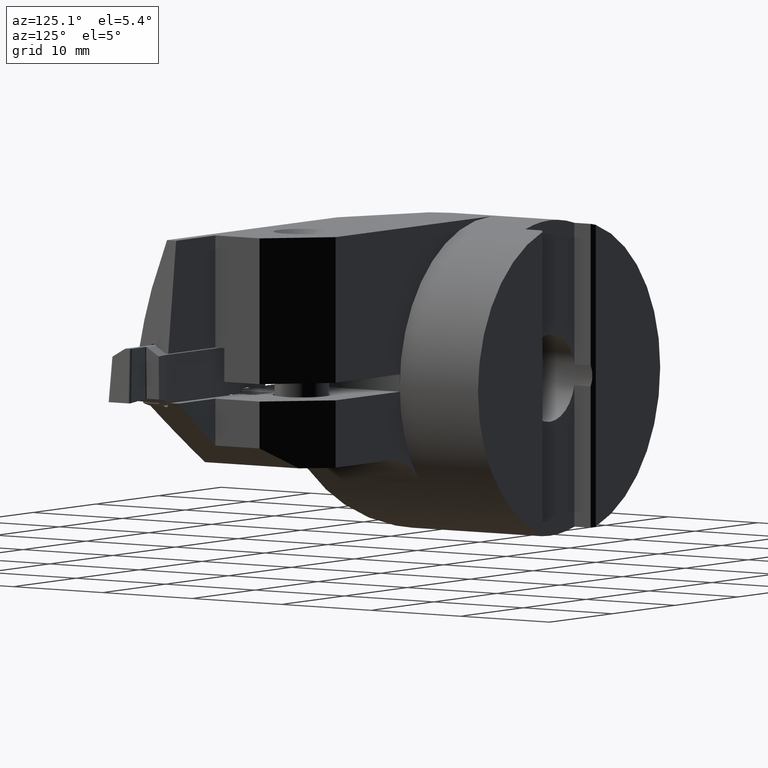
[diagram: clean part render]
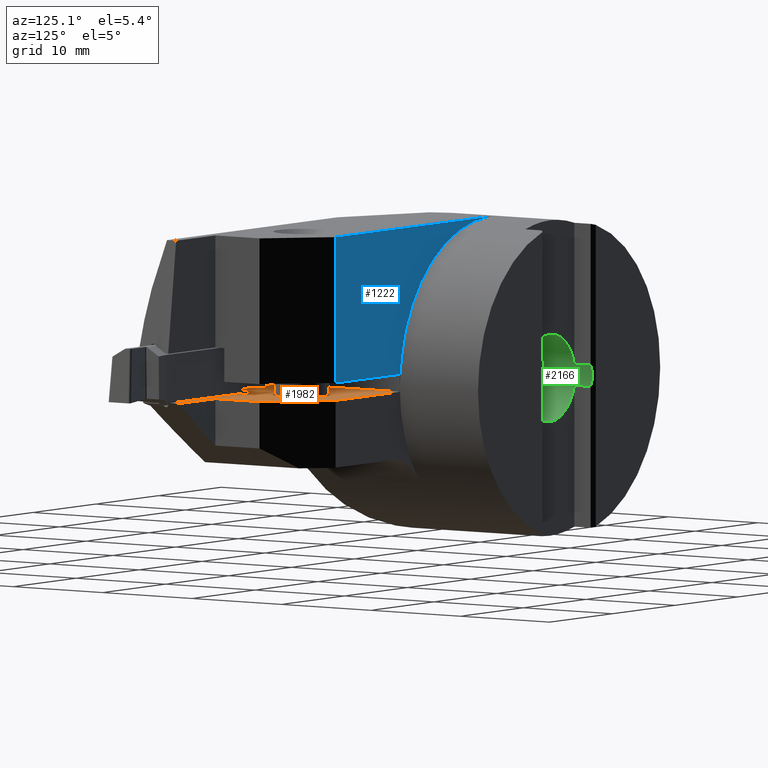
[diagram: same view with three faces highlighted in distinct colors, each labeled with its STEP entity id]
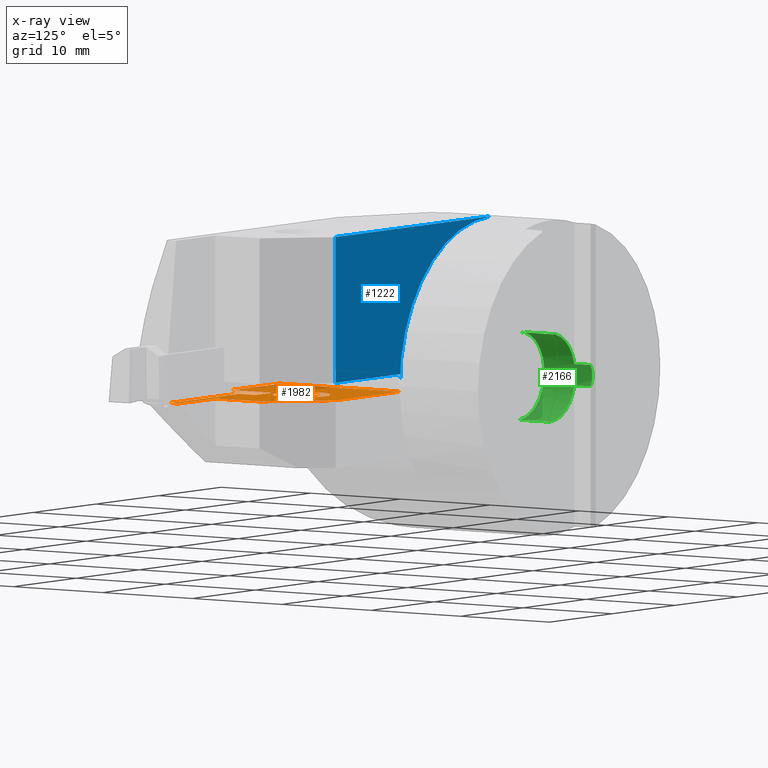
[diagram: x-ray of the same camera — body ghosted, the three highlighted faces saturated]
A machine part, auxiliary view with three faces highlighted in distinct colors.
The next image is the same camera in x-ray (body ghosted, the three faces saturated) — at least one of them is partly hidden behind the body in this view.
Their STEP definitions:

[orange] entity #1982 — the highlighted planar face has unit normal (0, -0, 1).
#878=VERTEX_POINT('NONE',#2361);
#888=VERTEX_POINT('NONE',#2372);
#918=VERTEX_POINT('NONE',#2404);
#958=EDGE_CURVE('Kante116',#1426,#984,#2451,.T.);
#984=VERTEX_POINT('NONE',#2478);
#1034=EDGE_CURVE('Kante59',#1250,#878,#2533,.T.);
#1194=VERTEX_POINT('NONE',#2709);
#1250=VERTEX_POINT('NONE',#2769);
#1254=VERTEX_POINT('NONE',#2774);
#1272=EDGE_CURVE('Kante118',#2096,#2148,#2792,.F.);
#1338=EDGE_CURVE('NONE',#1426,#1448,#2863,.F.);
#1348=EDGE_CURVE('Kante118',#2148,#2096,#2874,.T.);
#1378=EDGE_CURVE('Kante113',#1726,#1254,#2908,.T.);
#1380=EDGE_CURVE('Kante117',#888,#1194,#2910,.T.);
#1426=VERTEX_POINT('NONE',#2960);
#1448=VERTEX_POINT('NONE',#2983);
#1490=EDGE_CURVE('Kante53',#1726,#1194,#3029,.T.);
#1536=EDGE_CURVE('Kante70',#1250,#1254,#3081,.T.);
#1554=VERTEX_POINT('NONE',#3101);
#1564=EDGE_CURVE('Kante37',#878,#918,#3112,.F.);
#1574=EDGE_CURVE('Kante35',#1448,#888,#3123,.T.);
#1668=EDGE_CURVE('Kante61',#984,#1554,#3224,.T.);
#1726=VERTEX_POINT('NONE',#3286);
#1860=EDGE_CURVE('Kante111',#1554,#918,#3436,.F.);
#1982=ADVANCED_FACE('NONE',(#3570,#3571),#3572,.T.);
#2096=VERTEX_POINT('NONE',#3699);
#2148=VERTEX_POINT('NONE',#3756);
#2361=CARTESIAN_POINT('',(14.5,-8.75,-0.5));
#2372=CARTESIAN_POINT('',(24.6779736417661,-19.5903916638199,-0.5));
#2404=CARTESIAN_POINT('',(24.7,-8.75,-0.5));
#2451=LINE('',#4221,#4222);
#2478=CARTESIAN_POINT('',(29.7,-18.6955136271329,-0.5));
#2533=LINE('',#4368,#4369);
#2709=CARTESIAN_POINT('',(24.6779736417661,-17.7,-0.5));
#2769=CARTESIAN_POINT('',(14.5,-22.1971263418631,-0.499999999999999));
#2774=CARTESIAN_POINT('',(21.8747842953657,-22.1971263418631,-0.5));
#2792=CIRCLE('',#4895,2.65);
#2863=LINE('',#4999,#5000);
#2874=CIRCLE('',#5016,2.65);
#2908=LINE('',#5096,#5097);
#2910=LINE('',#5100,#5101);
#2960=CARTESIAN_POINT('',(35.6335679069214,-18.6955136271329,-0.5));
#2983=CARTESIAN_POINT('',(35.6335679069214,-19.5903916638199,-0.5));
#3029=LINE('',#5426,#5427);
#3081=LINE('',#5501,#5502);
#3101=CARTESIAN_POINT('',(29.7,-13.75,-0.5));
#3112=LINE('',#5541,#5542);
#3123=LINE('',#5574,#5575);
#3224=LINE('',#5739,#5740);
#3286=CARTESIAN_POINT('',(21.8747842953657,-17.7,-0.5));
#3436=LINE('',#6090,#6091);
#3570=FACE_OUTER_BOUND('',#6475,.T.);
#3571=FACE_BOUND('',#6476,.T.);
#3572=PLANE('',#6477);
#3699=CARTESIAN_POINT('',(24.65,-14.45,-0.5));
#3756=CARTESIAN_POINT('',(19.35,-14.45,-0.5));
#4221=CARTESIAN_POINT('',(37.2,-18.6955136271329,-0.5));
#4222=VECTOR('',#7194,1.0);
#4368=CARTESIAN_POINT('',(14.5,-22.2,-0.5));
#4369=VECTOR('',#7273,1.0);
#4895=AXIS2_PLACEMENT_3D('',#7537,#7538,#7539);
#4999=CARTESIAN_POINT('',(35.6335679069214,-22.2,-0.5));
#5000=VECTOR('',#7602,1.0);
#5016=AXIS2_PLACEMENT_3D('',#7621,#7622,#7623);
#5096=CARTESIAN_POINT('',(21.8747842953657,-17.7,-0.5));
#5097=VECTOR('',#7656,1.0);
#5100=CARTESIAN_POINT('',(24.6779736417661,-19.95,-0.5));
#5101=VECTOR('',#7657,1.0);
#5426=CARTESIAN_POINT('',(30.2356041498713,-17.7,-0.5));
#5427=VECTOR('',#7762,1.0);
#5501=CARTESIAN_POINT('',(-17.6127080987776,-22.1971263418631,-0.5));
#5502=VECTOR('',#7843,1.0);
#5541=CARTESIAN_POINT('',(18.6,-8.75,-0.5));
#5542=VECTOR('',#7879,1.0);
#5574=CARTESIAN_POINT('',(11.3495,-19.5903916638199,-0.5));
#5575=VECTOR('',#7889,1.0);
#5739=CARTESIAN_POINT('',(29.7,-20.4477568135664,-0.5));
#5740=VECTOR('',#7984,1.0);
#6090=CARTESIAN_POINT('',(31.1875,-15.2375,-0.5));
#6091=VECTOR('',#8230,1.0);
#6475=EDGE_LOOP('',(#8365,#8366,#8367,#8368,#8369,#8370,#8371,#8372,#8373,#8374,#8375));
#6476=EDGE_LOOP('',(#8376,#8377));
#6477=AXIS2_PLACEMENT_3D('',#8378,#8379,#8380);
#7194=DIRECTION('',(-1.0,0.0,-0.0));
#7273=DIRECTION('',(0.0,1.0,0.0));
#7537=CARTESIAN_POINT('',(22.0,-14.45,-0.5));
#7538=DIRECTION('',(0.0,-0.0,1.0));
#7539=DIRECTION('',(1.0,0.0,0.0));
#7602=DIRECTION('',(0.0,1.0,0.0));
#7621=CARTESIAN_POINT('',(22.0,-14.45,-0.5));
#7622=DIRECTION('',(0.0,0.0,-1.0));
#7623=DIRECTION('',(1.0,0.0,0.0));
#7656=DIRECTION('',(0.0,-1.0,0.0));
#7657=DIRECTION('',(1.52839072773287E-016,1.0,0.0));
#7762=DIRECTION('',(1.0,-3.57028744646768E-048,0.0));
#7843=DIRECTION('',(1.0,0.0,0.0));
#7879=DIRECTION('',(-1.0,0.0,0.0));
#7889=DIRECTION('',(-1.0,0.0,0.0));
#7984=DIRECTION('',(0.0,1.0,0.0));
#8230=DIRECTION('',(0.707106781186547,-0.707106781186549,0.0));
#8365=ORIENTED_EDGE('',*,*,#1034,.F.);
#8366=ORIENTED_EDGE('',*,*,#1536,.T.);
#8367=ORIENTED_EDGE('',*,*,#1378,.F.);
#8368=ORIENTED_EDGE('',*,*,#1490,.T.);
#8369=ORIENTED_EDGE('',*,*,#1380,.F.);
#8370=ORIENTED_EDGE('',*,*,#1574,.F.);
#8371=ORIENTED_EDGE('',*,*,#1338,.F.);
#8372=ORIENTED_EDGE('',*,*,#958,.T.);
#8373=ORIENTED_EDGE('',*,*,#1668,.T.);
#8374=ORIENTED_EDGE('',*,*,#1860,.T.);
#8375=ORIENTED_EDGE('',*,*,#1564,.F.);
#8376=ORIENTED_EDGE('',*,*,#1272,.T.);
#8377=ORIENTED_EDGE('',*,*,#1348,.T.);
#8378=CARTESIAN_POINT('',(37.2,-22.2,-0.5));
#8379=DIRECTION('',(0.0,-0.0,1.0));
#8380=DIRECTION('',(0.0,1.0,0.0));

[blue] entity #1222 — the highlighted planar face has unit normal (0, 1, 0).
#876=EDGE_CURVE('Kante48',#2158,#1174,#2359,.F.);
#1174=VERTEX_POINT('NONE',#2689);
#1222=ADVANCED_FACE('NONE',(#2738),#2739,.T.);
#1256=EDGE_CURVE('Kante77',#1258,#1722,#2776,.F.);
#1258=VERTEX_POINT('NONE',#2778);
#1396=EDGE_CURVE('Kante86',#2078,#1722,#2927,.F.);
#1450=EDGE_CURVE('Kante39',#1174,#1258,#2985,.F.);
#1722=VERTEX_POINT('NONE',#3282);
#1754=EDGE_CURVE('Kante81',#2158,#2078,#3317,.F.);
#2078=VERTEX_POINT('NONE',#3678);
#2158=VERTEX_POINT('NONE',#3766);
#2359=LINE('',#4100,#4101);
#2689=CARTESIAN_POINT('',(24.7,-8.75,1.1));
#2738=FACE_OUTER_BOUND('',#4794,.T.);
#2739=PLANE('',#4795);
#2776=LINE('',#4868,#4869);
#2778=CARTESIAN_POINT('',(14.5,-8.75,1.1));
#2927=CIRCLE('',#5160,14.5);
#2985=LINE('',#5275,#5276);
#3282=CARTESIAN_POINT('',(14.5,-8.75,0.0));
#3317=LINE('',#5901,#5902);
#3678=CARTESIAN_POINT('',(0.0,-8.75,14.5));
#3766=CARTESIAN_POINT('',(24.7,-8.75,14.5));
#4100=CARTESIAN_POINT('',(24.7,-8.75,0.0));
#4101=VECTOR('',#7094,1.0);
#4794=EDGE_LOOP('',(#7496,#7497,#7498,#7499,#7500));
#4795=AXIS2_PLACEMENT_3D('',#7501,#7502,#7503);
#4868=CARTESIAN_POINT('',(14.5,-8.75,-0.25));
#4869=VECTOR('',#7531,1.0);
#5160=AXIS2_PLACEMENT_3D('',#7677,#7678,#7679);
#5275=CARTESIAN_POINT('',(7.25,-8.75,1.1));
#5276=VECTOR('',#7728,1.0);
#5901=CARTESIAN_POINT('',(0.0,-8.75,14.5));
#5902=VECTOR('',#8079,1.0);
#7094=DIRECTION('',(-0.0,0.0,1.0));
#7496=ORIENTED_EDGE('',*,*,#1754,.F.);
#7497=ORIENTED_EDGE('',*,*,#876,.T.);
#7498=ORIENTED_EDGE('',*,*,#1450,.T.);
#7499=ORIENTED_EDGE('',*,*,#1256,.T.);
#7500=ORIENTED_EDGE('',*,*,#1396,.F.);
#7501=CARTESIAN_POINT('',(0.0,-8.75,0.0));
#7502=DIRECTION('',(0.0,1.0,0.0));
#7503=DIRECTION('',(0.0,0.0,1.0));
#7531=DIRECTION('',(0.0,0.0,1.0));
#7677=CARTESIAN_POINT('',(0.0,-8.75,0.0));
#7678=DIRECTION('',(0.0,-1.0,0.0));
#7679=DIRECTION('',(0.0,0.0,1.0));
#7728=DIRECTION('',(1.0,0.0,0.0));
#8079=DIRECTION('',(1.0,0.0,0.0));

[green] entity #2166 — the highlighted cylindrical surface (partial cylindrical patch) has radius 4.025 mm, axis along (-0, 1, -0).
#868=EDGE_CURVE('Kante5',#1970,#2110,#2351,.F.);
#988=VERTEX_POINT('NONE',#2482);
#996=EDGE_CURVE('NONE',#1744,#2200,#2490,.T.);
#998=EDGE_CURVE('Kante110',#1062,#2008,#2492,.F.);
#1062=VERTEX_POINT('NONE',#2564);
#1292=EDGE_CURVE('Kante90',#988,#1744,#2815,.F.);
#1580=EDGE_CURVE('Kante64',#2200,#1970,#3129,.F.);
#1626=EDGE_CURVE('Kante29',#2008,#2100,#3179,.F.);
#1696=EDGE_CURVE('NONE',#988,#2100,#3254,.T.);
#1744=VERTEX_POINT('NONE',#3305);
#1970=VERTEX_POINT('NONE',#3557);
#2008=VERTEX_POINT('NONE',#3601);
#2010=EDGE_CURVE('Kante134',#2110,#1062,#3603,.F.);
#2100=VERTEX_POINT('NONE',#3703);
#2110=VERTEX_POINT('NONE',#3713);
#2166=ADVANCED_FACE('Fl�che1',(#3775),#3776,.F.);
#2200=VERTEX_POINT('NONE',#3811);
#2351=LINE('',#4060,#4061);
#2482=CARTESIAN_POINT('',(0.0,-5.60000000000002,-4.025));
#2490=LINE('',#4308,#4309);
#2492=LINE('',#4312,#4313);
#2564=CARTESIAN_POINT('',(-3.905,-0.329999999999996,-0.975499871860578));
#2815=CIRCLE('',#4925,4.025);
#3129=CIRCLE('',#5584,4.025);
#3179=CIRCLE('',#5659,4.025);
#3254=LINE('',#5792,#5793);
#3305=CARTESIAN_POINT('',(5.23536506635494E-016,-5.60000000000002,4.025));
#3557=CARTESIAN_POINT('',(-3.905,-2.15,0.975499871860579));
#3601=CARTESIAN_POINT('',(-3.905,-2.15,-0.975499871860578));
#3603=ELLIPSE('',#6519,5.69220958855168,4.025);
#3703=CARTESIAN_POINT('',(4.9292033665681E-016,-2.15,-4.025));
#3713=CARTESIAN_POINT('',(-3.905,-0.329999999999996,0.975499871860578));
#3775=FACE_OUTER_BOUND('',#6797,.T.);
#3776=CYLINDRICAL_SURFACE('',#6798,4.025);
#3811=CARTESIAN_POINT('',(0.0,-2.15,4.025));
#4060=CARTESIAN_POINT('',(-3.905,0.0,0.975499871860578));
#4061=VECTOR('',#7093,1.0);
#4308=CARTESIAN_POINT('',(0.0,0.0,4.025));
#4309=VECTOR('',#7214,1000.0);
#4312=CARTESIAN_POINT('',(-3.905,0.0,-0.975499871860578));
#4313=VECTOR('',#7215,1.0);
#4925=AXIS2_PLACEMENT_3D('',#7565,#7566,#7567);
#5584=AXIS2_PLACEMENT_3D('',#7891,#7892,#7893);
#5659=AXIS2_PLACEMENT_3D('',#7940,#7941,#7942);
#5792=CARTESIAN_POINT('',(4.9292033665681E-016,0.0,-4.025));
#5793=VECTOR('',#8011,1000.0);
#6519=AXIS2_PLACEMENT_3D('',#8420,#8421,#8422);
#6797=EDGE_LOOP('',(#8607,#8608,#8609,#8610,#8611,#8612,#8613,#8614));
#6798=AXIS2_PLACEMENT_3D('',#8615,#8616,#8617);
#7093=DIRECTION('',(0.0,-1.0,0.0));
#7214=DIRECTION('',(-0.0,1.0,0.0));
#7215=DIRECTION('',(-0.0,1.0,0.0));
#7565=CARTESIAN_POINT('',(0.0,-5.60000000000002,0.0));
#7566=DIRECTION('',(0.0,-1.0,0.0));
#7567=DIRECTION('',(0.0,0.0,1.0));
#7891=CARTESIAN_POINT('',(0.0,-2.15,0.0));
#7892=DIRECTION('',(0.0,1.0,0.0));
#7893=DIRECTION('',(0.0,0.0,1.0));
#7940=CARTESIAN_POINT('',(0.0,-2.15,0.0));
#7941=DIRECTION('',(0.0,1.0,0.0));
#7942=DIRECTION('',(0.0,0.0,1.0));
#8011=DIRECTION('',(-0.0,1.0,0.0));
#8420=CARTESIAN_POINT('',(0.0,-4.23499999999996,0.0));
#8421=DIRECTION('',(0.707106781186544,0.707106781186551,0.0));
#8422=DIRECTION('',(-0.707106781186551,0.707106781186544,-0.0));
#8607=ORIENTED_EDGE('',*,*,#1292,.F.);
#8608=ORIENTED_EDGE('',*,*,#1696,.T.);
#8609=ORIENTED_EDGE('',*,*,#1626,.F.);
#8610=ORIENTED_EDGE('',*,*,#998,.F.);
#8611=ORIENTED_EDGE('',*,*,#2010,.F.);
#8612=ORIENTED_EDGE('',*,*,#868,.F.);
#8613=ORIENTED_EDGE('',*,*,#1580,.F.);
#8614=ORIENTED_EDGE('',*,*,#996,.F.);
#8615=CARTESIAN_POINT('',(0.0,0.0,0.0));
#8616=DIRECTION('',(-0.0,1.0,-0.0));
#8617=DIRECTION('',(0.0,0.0,1.0));